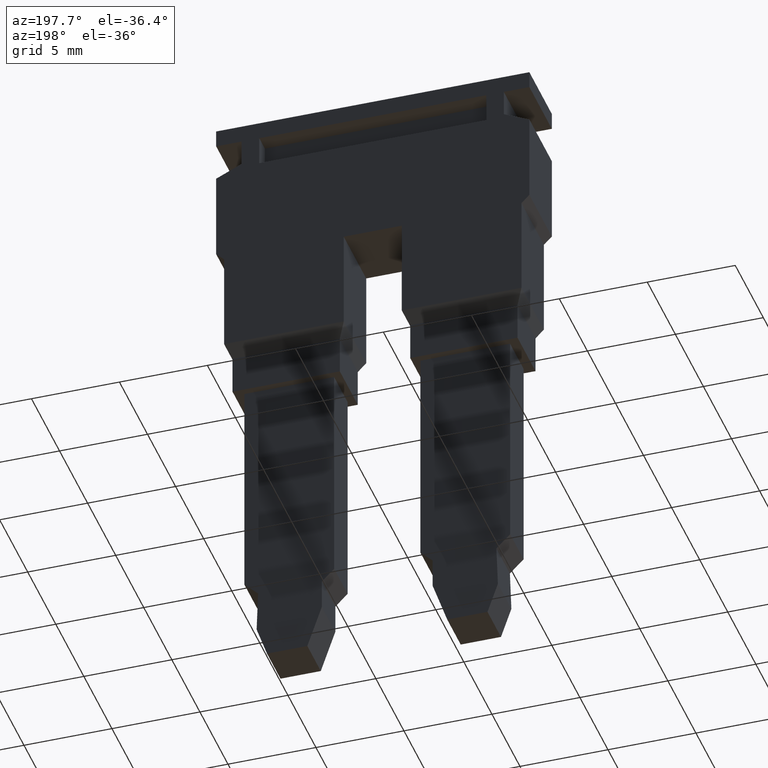
[diagram: clean part render]
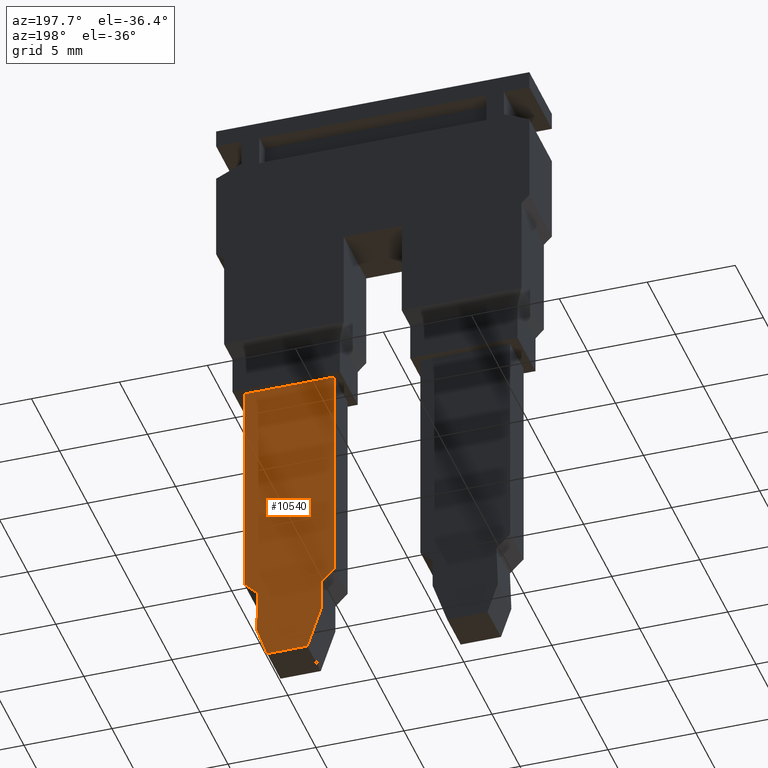
[diagram: same view with one face highlighted and labeled with its STEP entity id]
A machine part, auxiliary view. The second image highlights one B-rep face of the part: STEP entity #10540.
In plain terms, the highlighted planar face has unit normal (0, -1, -0).
Its self-contained STEP definition (entity closure, byte-faithful):
#6990=CARTESIAN_POINT('',(-3.19999999977389,33.899474000019,
2.44999999999994));
#7000=VERTEX_POINT('',#6990);
#7030=CARTESIAN_POINT('',(-3.19999999977389,33.899474000019,
4.23237639386843));
#7040=DIRECTION('',(1.11022302465529E-16,-1.54590859596204E-17,1.));
#7050=VECTOR('',#7040,1.);
#7060=LINE('',#7030,#7050);
#7070=CARTESIAN_POINT('',(-3.19999999977389,33.899474000019,
7.54999999999994));
#7080=VERTEX_POINT('',#7070);
#7090=EDGE_CURVE('',#7000,#7080,#7060,.T.);
#8370=CARTESIAN_POINT('',(-3.1999999995482,20.9994740000514,
2.44999999999994));
#8380=VERTEX_POINT('',#8370);
#8410=CARTESIAN_POINT('',(-3.1999999991808,4.76774175695027E-11,
2.44999999999993));
#8420=DIRECTION('',(1.74953625171753E-11,-1.,-4.15479522035837E-16));
#8430=VECTOR('',#8420,1.);
#8440=LINE('',#8410,#8430);
#8450=EDGE_CURVE('',#7000,#8380,#8440,.T.);
#8680=CARTESIAN_POINT('',(-3.19999999949399,17.9010751925417,
6.85580477337537));
#8690=VERTEX_POINT('',#8680);
#8720=CARTESIAN_POINT('',(-3.1999999991808,4.76774175695027E-11,
0.822730657517559));
#8730=DIRECTION('',(-1.65790787026251E-11,0.94762914753996,
0.319372820904799));
#8740=VECTOR('',#8730,1.);
#8750=LINE('',#8720,#8740);
#8760=CARTESIAN_POINT('',(-3.19999999946334,16.1494740000516,
6.26547487966325));
#8770=VERTEX_POINT('',#8760);
#8780=EDGE_CURVE('',#8770,#8690,#8750,.T.);
#9060=CARTESIAN_POINT('',(-3.19999999953603,20.3039117134211,
6.77189587310339));
#9070=VERTEX_POINT('',#9060);
#9100=CARTESIAN_POINT('',(-3.1999999991808,4.76774175695027E-11,
7.4809240938269));
#9110=DIRECTION('',(-1.74847125109681E-11,0.999390827019096,
-0.034899496702501));
#9120=VECTOR('',#9110,1.);
#9130=LINE('',#9100,#9120);
#9140=EDGE_CURVE('',#8690,#9070,#9130,.T.);
#9340=CARTESIAN_POINT('',(-3.19999999946334,16.1494740000516,
-0.099999999999997));
#9350=DIRECTION('',(1.11022302460573E-16,2.67817858919799E-16,1.));
#9360=VECTOR('',#9350,1.);
#9370=LINE('',#9340,#9360);
#9380=CARTESIAN_POINT('',(-3.19999999946334,16.1494740000516,
3.97570635701532));
#9390=VERTEX_POINT('',#9380);
#9400=EDGE_CURVE('',#9390,#8770,#9370,.T.);
#9680=CARTESIAN_POINT('',(-3.19999999954964,21.0820158403177,
7.54999999999994));
#9690=VERTEX_POINT('',#9680);
#9720=CARTESIAN_POINT('',(-3.19999999980828,35.8654186231995,
22.3334027828817));
#9730=DIRECTION('',(-1.23710208743688E-11,0.707106781186548,
0.707106781186547));
#9740=VECTOR('',#9730,1.);
#9750=LINE('',#9720,#9740);
#9760=EDGE_CURVE('',#9070,#9690,#9750,.T.);
#9990=CARTESIAN_POINT('',(-3.19999999953595,20.2994740000516,
3.14999999999999));
#10000=VERTEX_POINT('',#9990);
#10030=CARTESIAN_POINT('',(-3.19999999951701,19.2170976061836,
4.23237639386844));
#10040=DIRECTION('',(1.23711596522469E-11,-0.707106781186409,
0.707106781186686));
#10050=VECTOR('',#10040,1.);
#10060=LINE('',#10030,#10050);
#10070=EDGE_CURVE('',#8380,#10000,#10060,.T.);
#10200=CARTESIAN_POINT('',(-3.1999999998314,37.1870559862068,
-3.14011786429392));
#10210=DIRECTION('',(-1.,-1.74953625171753E-11,1.11022302465259E-16));
#10220=DIRECTION('',(-1.74953625171753E-11,1.,-1.51074367729592E-16));
#10230=AXIS2_PLACEMENT_3D('',#10200,#10210,#10220);
#10240=PLANE('',#10230);
#10250=ORIENTED_EDGE('',*,*,#8450,.F.);
#10260=ORIENTED_EDGE('',*,*,#10070,.F.);
#10270=CARTESIAN_POINT('',(-3.1999999991808,4.76774175695027E-11,
3.14999999999999));
#10280=DIRECTION('',(1.74953625171753E-11,-1.,-3.04457219572513E-16));
#10290=VECTOR('',#10280,1.);
#10300=LINE('',#10270,#10290);
#10310=CARTESIAN_POINT('',(-3.19999999950621,18.5994740000516,3.15));
#10320=VERTEX_POINT('',#10310);
#10330=EDGE_CURVE('',#10000,#10320,#10300,.T.);
#10340=ORIENTED_EDGE('',*,*,#10330,.F.);
#10350=CARTESIAN_POINT('',(-3.1999999991808,4.76774175695027E-11,
9.41845057916103));
#10360=DIRECTION('',(1.65792024698041E-11,-0.94762914753996,
0.3193728209048));
#10370=VECTOR('',#10360,1.);
#10380=LINE('',#10350,#10370);
#10390=EDGE_CURVE('',#10320,#9390,#10380,.T.);
#10400=ORIENTED_EDGE('',*,*,#10390,.F.);
#10410=ORIENTED_EDGE('',*,*,#9400,.F.);
#10420=ORIENTED_EDGE('',*,*,#8780,.F.);
#10430=ORIENTED_EDGE('',*,*,#9140,.F.);
#10440=ORIENTED_EDGE('',*,*,#9760,.F.);
#10450=CARTESIAN_POINT('',(-3.19999999980828,35.8654186231995,
7.54999999999995));
#10460=DIRECTION('',(1.74953625171753E-11,-1.,-4.15479522033159E-16));
#10470=VECTOR('',#10460,1.);
#10480=LINE('',#10450,#10470);
#10490=EDGE_CURVE('',#7080,#9690,#10480,.T.);
#10500=ORIENTED_EDGE('',*,*,#10490,.T.);
#10510=ORIENTED_EDGE('',*,*,#7090,.T.);
#10520=EDGE_LOOP('',(#10510,#10500,#10440,#10430,#10420,#10410,#10400,
#10340,#10260,#10250));
#10530=FACE_OUTER_BOUND('',#10520,.T.);
#10540=ADVANCED_FACE('',(#10530),#10240,.F.);